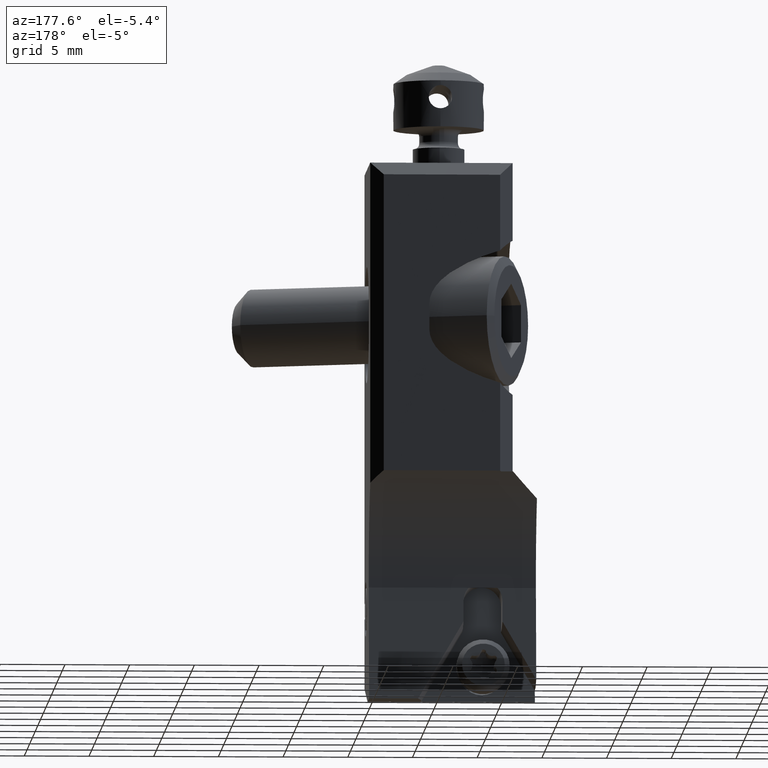
[diagram: clean part render]
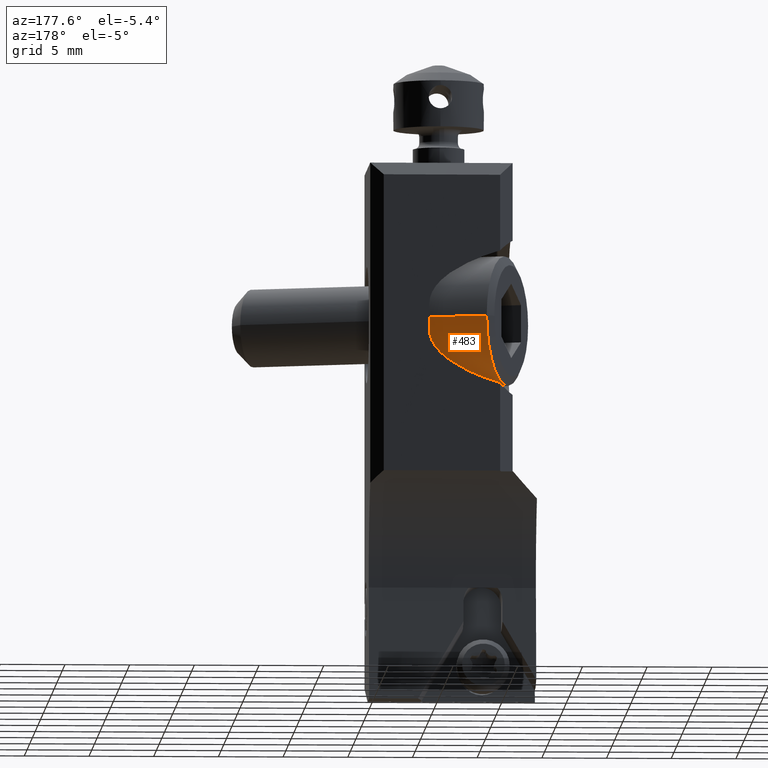
[diagram: same view with one face highlighted and labeled with its STEP entity id]
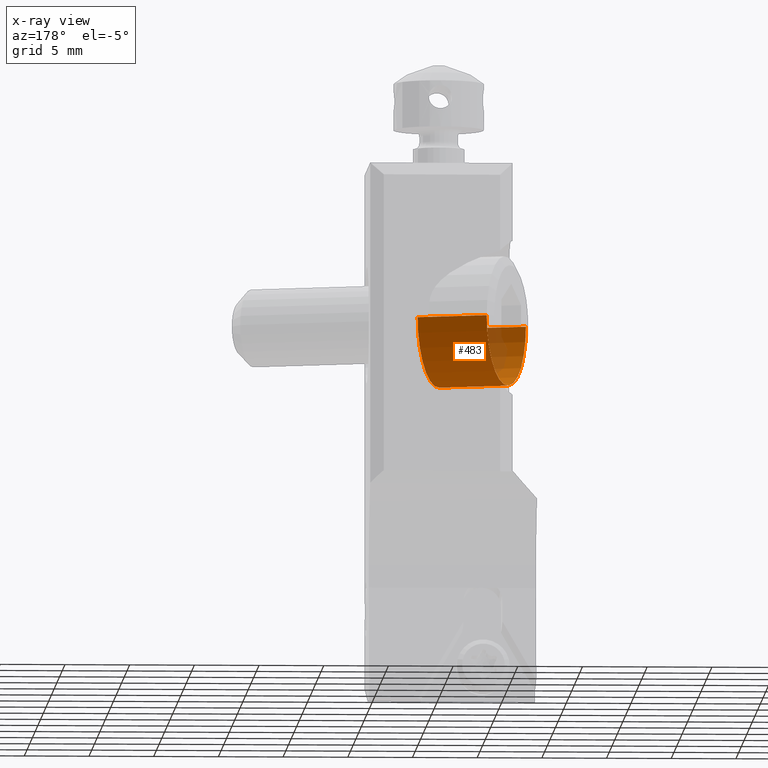
[diagram: x-ray of the same camera — body ghosted, the highlighted face saturated]
A machine part, auxiliary view. The second image highlights one B-rep face of the part: STEP entity #483.
The next image is the same camera in x-ray: the body ghosted, the highlighted face saturated — about 9% of this face is hidden behind the body in this view.
In plain terms, the highlighted cylindrical surface (partial cylindrical patch) has radius 5 mm, axis along (0.9397, -0.342, 0).
Its self-contained STEP definition (entity closure, byte-faithful):
#216=CYLINDRICAL_SURFACE('',#2984,4.999999999995);
#348=CIRCLE('',#2981,4.999999999995);
#349=CIRCLE('',#2983,5.000000000001);
#483=ADVANCED_FACE('',(#665),#216,.T.);
#665=FACE_OUTER_BOUND('',#816,.T.);
#816=EDGE_LOOP('',(#1554,#1555,#1556,#1557));
#1554=ORIENTED_EDGE('',*,*,#2204,.T.);
#1555=ORIENTED_EDGE('',*,*,#2205,.T.);
#1556=ORIENTED_EDGE('',*,*,#2206,.T.);
#1557=ORIENTED_EDGE('',*,*,#2207,.T.);
#1834=VERTEX_POINT('',#5342);
#1835=VERTEX_POINT('',#5343);
#1836=VERTEX_POINT('',#5347);
#1837=VERTEX_POINT('',#5349);
#2204=EDGE_CURVE('',#1835,#1834,#348,.T.);
#2205=EDGE_CURVE('',#1834,#1836,#2388,.T.);
#2206=EDGE_CURVE('',#1836,#1837,#349,.T.);
#2207=EDGE_CURVE('',#1837,#1835,#2389,.T.);
#2388=LINE('',#5346,#2567);
#2389=LINE('',#5350,#2568);
#2567=VECTOR('',#3760,1.);
#2568=VECTOR('',#3763,1.);
#2981=AXIS2_PLACEMENT_3D('',#5344,#3756,#3757);
#2983=AXIS2_PLACEMENT_3D('',#5348,#3761,#3762);
#2984=AXIS2_PLACEMENT_3D('',#5351,#3764,#3765);
#3756=DIRECTION('',(-0.939692620785421,0.342020143327008,0.));
#3757=DIRECTION('',(0.342020143327008,0.939692620785421,0.));
#3760=DIRECTION('',(-0.939692620785605,0.342020143326502,0.));
#3761=DIRECTION('',(0.939692620786298,-0.342020143324599,0.));
#3762=DIRECTION('',(-0.342020143324599,-0.939692620786298,0.));
#3763=DIRECTION('',(0.939692620785389,-0.342020143327096,0.));
#3764=DIRECTION('',(0.939692620785421,-0.342020143327008,0.));
#3765=DIRECTION('',(0.342020143327008,0.939692620785421,0.));
#5342=CARTESIAN_POINT('',(-7.071944991916,2.253088613043,-12.));
#5343=CARTESIAN_POINT('',(-3.651743558658,11.65001482089,-12.));
#5344=CARTESIAN_POINT('',(-5.361844275288,6.951551716966,-12.));
#5346=CARTESIAN_POINT('',(-7.071944991916,2.253088613043,-12.));
#5347=CARTESIAN_POINT('',(-12.33422366831,4.168401415671,-12.));
#5348=CARTESIAN_POINT('',(-10.62412295169,8.866864519602,-12.));
#5349=CARTESIAN_POINT('',(-8.914022235062,13.56532762353,-12.));
#5350=CARTESIAN_POINT('',(-8.914022235062,13.56532762353,-12.));
#5351=CARTESIAN_POINT('',(-10.72936852521,8.905170775647,-12.));